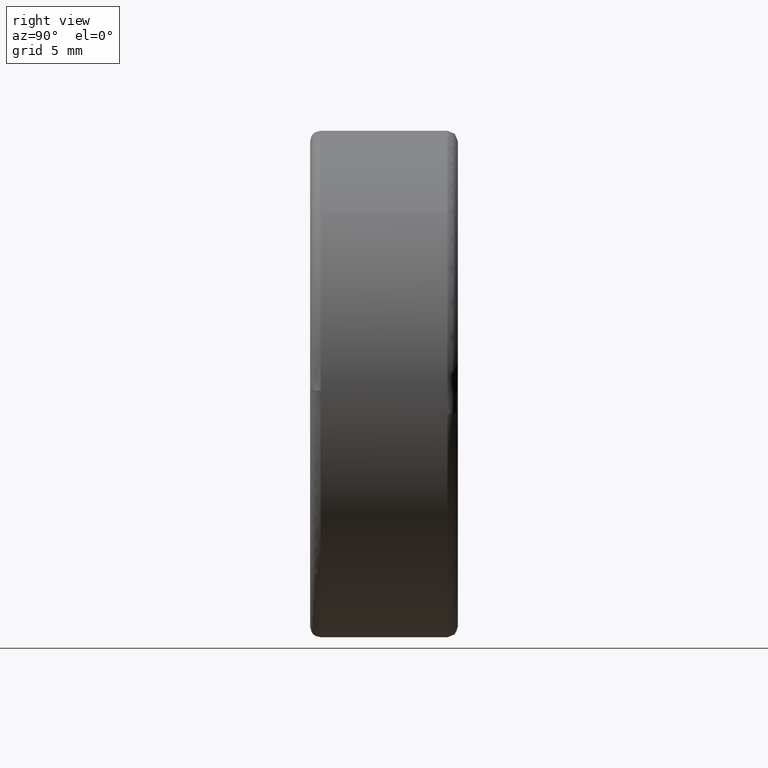
[diagram: clean part render]
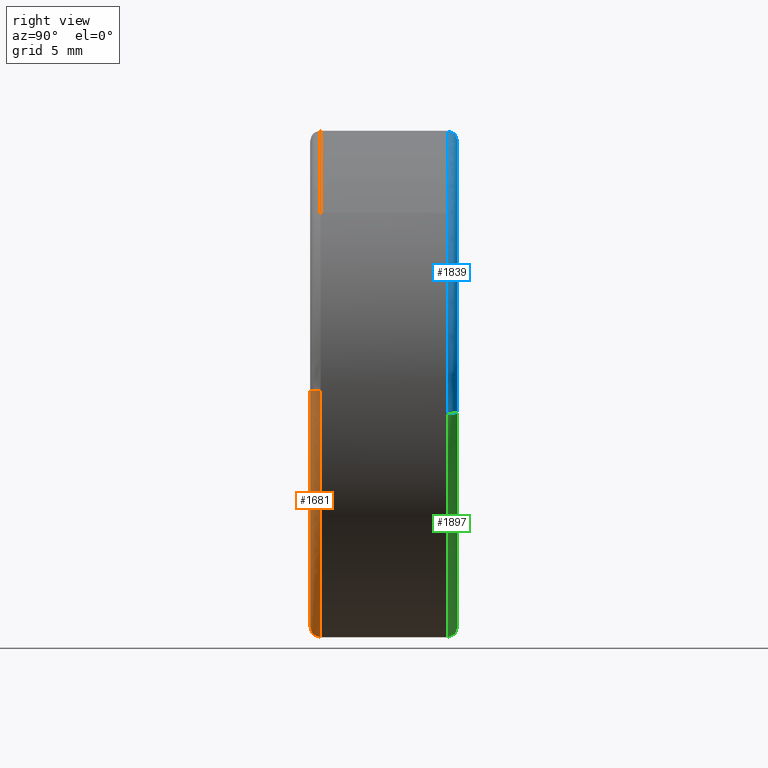
[diagram: same view with three faces highlighted in distinct colors, each labeled with its STEP entity id]
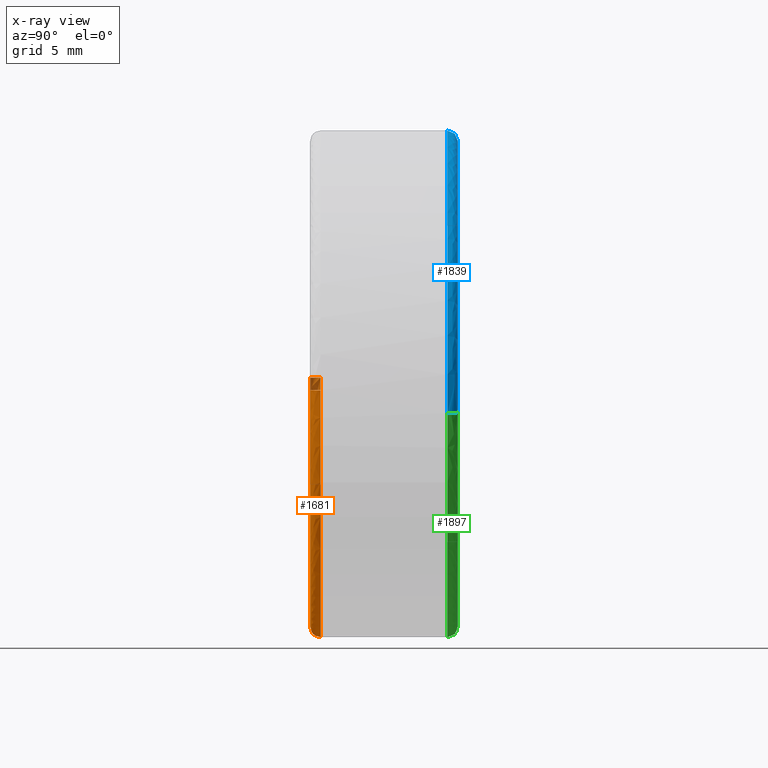
[diagram: x-ray of the same camera — body ghosted, the three highlighted faces saturated]
A machine part, right view with three faces highlighted in distinct colors.
The next image is the same camera in x-ray (body ghosted, the three faces saturated) — at least one of them is partly hidden behind the body in this view.
Their STEP definitions:

[orange] entity #1681 — the highlighted face is a freeform B-spline surface patch.
#1188=CARTESIAN_POINT('',(-11.996210271399590,0.499999999851395,0.301561145320187));
#1189=VERTEX_POINT('',#1188);
#1279=CARTESIAN_POINT('',(11.996210271399590,0.499999999851395,-0.301561145320187));
#1280=VERTEX_POINT('',#1279);
#1296=CARTESIAN_POINT('',(0.0,0.500000000000000,-12.0));
#1297=VERTEX_POINT('',#1296);
#1298=CARTESIAN_POINT('',(0.0,0.500000000000000,-12.0));
#1299=CARTESIAN_POINT('',(11.702134514167529,0.500000000000000,-12.000000000000002));
#1300=CARTESIAN_POINT('',(11.996210271399594,0.499999999851395,-0.301561145320187));
#1308=(BOUNDED_CURVE()B_SPLINE_CURVE(2,(#1298,#1299,#1300),.UNSPECIFIED.,.F.,.U.)B_SPLINE_CURVE_WITH_KNOTS((3,3),(0.0,0.245579891769804),.UNSPECIFIED.)CURVE()GEOMETRIC_REPRESENTATION_ITEM()RATIONAL_B_SPLINE_CURVE((1.0,0.712285260094732,0.989826157681567))REPRESENTATION_ITEM(''));
#1309=EDGE_CURVE('',#1297,#1280,#1308,.T.);
#1311=CARTESIAN_POINT('',(-11.996210271399594,0.499999999851395,0.301561145320187));
#1312=CARTESIAN_POINT('',(-12.000000000000002,0.500000000000000,0.150804385480692));
#1313=CARTESIAN_POINT('',(-12.0,0.500000000000000,-1.642359E-016));
#1314=CARTESIAN_POINT('',(-12.0,0.500000000000000,-12.0));
#1315=CARTESIAN_POINT('',(0.0,0.500000000000000,-12.0));
#1323=(BOUNDED_CURVE()B_SPLINE_CURVE(2,(#1311,#1312,#1313,#1314,#1315),.UNSPECIFIED.,.F.,.U.)B_SPLINE_CURVE_WITH_KNOTS((3,2,3),(0.745579891769804,0.750000000000000,1.0),.UNSPECIFIED.)CURVE()GEOMETRIC_REPRESENTATION_ITEM()RATIONAL_B_SPLINE_CURVE((0.989826157681567,0.994821521091816,1.0,0.707106781186548,1.0))REPRESENTATION_ITEM(''));
#1324=EDGE_CURVE('',#1189,#1297,#1323,.T.);
#1594=CARTESIAN_POINT('',(-11.994993809500418,0.534862092272230,0.301530565859099));
#1595=CARTESIAN_POINT('',(-12.296524375359516,0.534862092272230,-11.693463243641309));
#1596=CARTESIAN_POINT('',(-0.301530565859102,0.534862092272230,-11.994993809500418));
#1597=CARTESIAN_POINT('',(11.693463243641309,0.534862092272230,-12.296524375359516));
#1598=CARTESIAN_POINT('',(11.994993809500418,0.534862092272230,-0.301530565859103));
#1599=CARTESIAN_POINT('',(-12.035067614781358,-0.038667840746360,0.302537942550942));
#1600=CARTESIAN_POINT('',(-12.337605557332299,-0.038667840746360,-11.732529672230411));
#1601=CARTESIAN_POINT('',(-0.302537942550945,-0.038667840746360,-12.035067614781358));
#1602=CARTESIAN_POINT('',(11.732529672230406,-0.038667840746360,-12.337605557332303));
#1603=CARTESIAN_POINT('',(12.035067614781358,-0.038667840746360,-0.302537942550946));
#1604=CARTESIAN_POINT('',(-11.461703840548806,0.001203824725025,0.288124704325632));
#1605=CARTESIAN_POINT('',(-11.749828544874434,0.001203824725025,-11.173579136223164));
#1606=CARTESIAN_POINT('',(-0.288124704325635,0.001203824725025,-11.461703840548806));
#1607=CARTESIAN_POINT('',(11.173579136223164,0.001203824725025,-11.749828544874434));
#1608=CARTESIAN_POINT('',(11.461703840548806,0.001203824725025,-0.288124704325636));
#1616=(BOUNDED_SURFACE()B_SPLINE_SURFACE(2,2,((#1594,#1599,#1604),(#1595,#1600,#1605),(#1596,#1601,#1606),(#1597,#1602,#1607),(#1598,#1603,#1608)),.UNSPECIFIED.,.F.,.F.,.U.)B_SPLINE_SURFACE_WITH_KNOTS((3,2,3),(3,3),(0.0,19.880234857123948,39.760469714247890),(0.0,0.911185162596443),.UNSPECIFIED.)GEOMETRIC_REPRESENTATION_ITEM()RATIONAL_B_SPLINE_SURFACE(((0.910892941386805,0.599412934105556,0.915966621324616),(0.644098575789570,0.423848950436964,0.647686209279166),(0.910892941386805,0.599412934105556,0.915966621324616),(0.644098575789570,0.423848950436964,0.647686209279166),(0.910892941386805,0.599412934105556,0.915966621324616)))REPRESENTATION_ITEM('')SURFACE());
#1617=CARTESIAN_POINT('',(-11.496368177523900,-9.688065E-016,0.288996097631335));
#1618=VERTEX_POINT('',#1617);
#1619=CARTESIAN_POINT('',(0.0,-2.109424E-015,-11.500000000000000));
#1620=VERTEX_POINT('',#1619);
#1621=CARTESIAN_POINT('',(-11.496368177523902,-9.688065E-016,0.288996097631335));
#1622=CARTESIAN_POINT('',(-11.500000000000000,-2.109424E-015,0.144520869432563));
#1623=CARTESIAN_POINT('',(-11.500000000000000,-2.109424E-015,-1.642359E-016));
#1624=CARTESIAN_POINT('',(-11.500000000000000,-2.109424E-015,-11.500000000000000));
#1625=CARTESIAN_POINT('',(0.0,-2.109424E-015,-11.500000000000000));
#1633=(BOUNDED_CURVE()B_SPLINE_CURVE(2,(#1621,#1622,#1623,#1624,#1625),.UNSPECIFIED.,.F.,.U.)B_SPLINE_CURVE_WITH_KNOTS((3,2,3),(0.745579891769391,0.750000000000000,1.0),.UNSPECIFIED.)CURVE()GEOMETRIC_REPRESENTATION_ITEM()RATIONAL_B_SPLINE_CURVE((0.989826157680634,0.994821521091332,1.0,0.707106781186548,1.0))REPRESENTATION_ITEM(''));
#1634=EDGE_CURVE('',#1618,#1620,#1633,.T.);
#1635=ORIENTED_EDGE('',*,*,#1634,.F.);
#1636=CARTESIAN_POINT('',(-11.996210271399599,0.499999999851395,0.301561145320187));
#1637=CARTESIAN_POINT('',(-11.996210271102481,1.533080E-009,0.301561145312582));
#1638=CARTESIAN_POINT('',(-11.496368177523905,-9.688065E-016,0.288996097631335));
#1646=(BOUNDED_CURVE()B_SPLINE_CURVE(2,(#1636,#1637,#1638),.UNSPECIFIED.,.F.,.U.)B_SPLINE_CURVE_WITH_KNOTS((3,3),(-1.723441281372762,-0.263586882101191),.UNSPECIFIED.)CURVE()GEOMETRIC_REPRESENTATION_ITEM()RATIONAL_B_SPLINE_CURVE((0.883897566922966,0.626638727906540,0.888510407924062))REPRESENTATION_ITEM(''));
#1647=EDGE_CURVE('',#1189,#1618,#1646,.T.);
#1648=ORIENTED_EDGE('',*,*,#1647,.F.);
#1649=ORIENTED_EDGE('',*,*,#1324,.T.);
#1650=ORIENTED_EDGE('',*,*,#1309,.T.);
#1651=CARTESIAN_POINT('',(11.496368177523900,-9.609969E-016,-0.288996097631335));
#1652=VERTEX_POINT('',#1651);
#1653=CARTESIAN_POINT('',(11.996210271399599,0.499999999851395,-0.301561145320187));
#1654=CARTESIAN_POINT('',(11.996210271102481,1.533080E-009,-0.301561145312580));
#1655=CARTESIAN_POINT('',(11.496368177523905,-9.609969E-016,-0.288996097631335));
#1663=(BOUNDED_CURVE()B_SPLINE_CURVE(2,(#1653,#1654,#1655),.UNSPECIFIED.,.F.,.U.)B_SPLINE_CURVE_WITH_KNOTS((3,3),(-1.723441281372762,-0.263586882101191),.UNSPECIFIED.)CURVE()GEOMETRIC_REPRESENTATION_ITEM()RATIONAL_B_SPLINE_CURVE((0.883897566922966,0.626638727906540,0.888510407924062))REPRESENTATION_ITEM(''));
#1664=EDGE_CURVE('',#1280,#1652,#1663,.T.);
#1665=ORIENTED_EDGE('',*,*,#1664,.T.);
#1666=CARTESIAN_POINT('',(0.0,-2.109424E-015,-11.500000000000000));
#1667=CARTESIAN_POINT('',(11.214545576050746,-2.109424E-015,-11.500000000000000));
#1668=CARTESIAN_POINT('',(11.496368177523902,-9.609969E-016,-0.288996097631335));
#1676=(BOUNDED_CURVE()B_SPLINE_CURVE(2,(#1666,#1667,#1668),.UNSPECIFIED.,.F.,.U.)B_SPLINE_CURVE_WITH_KNOTS((3,3),(0.0,0.245579891769391),.UNSPECIFIED.)CURVE()GEOMETRIC_REPRESENTATION_ITEM()RATIONAL_B_SPLINE_CURVE((1.0,0.712285260095215,0.989826157680634))REPRESENTATION_ITEM(''));
#1677=EDGE_CURVE('',#1620,#1652,#1676,.T.);
#1678=ORIENTED_EDGE('',*,*,#1677,.F.);
#1679=EDGE_LOOP('',(#1635,#1648,#1649,#1650,#1665,#1678));
#1680=FACE_OUTER_BOUND('',#1679,.T.);
#1681=ADVANCED_FACE('',(#1680),#1616,.T.);

[blue] entity #1839 — the highlighted face is a freeform B-spline surface patch.
#1203=CARTESIAN_POINT('',(-5.810634867246032,6.500000000006367,10.499358191791520));
#1204=VERTEX_POINT('',#1203);
#1210=CARTESIAN_POINT('',(-12.0,6.500000000050907,0.0));
#1211=VERTEX_POINT('',#1210);
#1212=CARTESIAN_POINT('',(-5.810634867246032,6.500000000006366,10.499358191791520));
#1213=CARTESIAN_POINT('',(-11.999999999999963,6.500000000020898,7.073992546621740));
#1214=CARTESIAN_POINT('',(-11.999999999999993,6.500000000050908,0.0));
#1222=(BOUNDED_CURVE()B_SPLINE_CURVE(2,(#1212,#1213,#1214),.UNSPECIFIED.,.F.,.U.)B_SPLINE_CURVE_WITH_KNOTS((3,3),(0.582484260833104,0.749999999999999),.UNSPECIFIED.)CURVE()GEOMETRIC_REPRESENTATION_ITEM()RATIONAL_B_SPLINE_CURVE((0.870495159877570,0.803743103813973,0.999999999999998))REPRESENTATION_ITEM(''));
#1223=EDGE_CURVE('',#1204,#1211,#1222,.T.);
#1240=CARTESIAN_POINT('',(11.919739665420460,6.500000000054701,-1.385570751929333));
#1241=VERTEX_POINT('',#1240);
#1255=CARTESIAN_POINT('',(8.847328477253249,6.500000000000000,8.107082016088356));
#1256=VERTEX_POINT('',#1255);
#1257=CARTESIAN_POINT('',(11.919739665420463,6.500000000054701,-1.385570751929333));
#1258=CARTESIAN_POINT('',(11.999999999999998,6.499999999999999,-0.695109949179016));
#1259=CARTESIAN_POINT('',(12.0,6.500000000000000,-1.642359E-016));
#1260=CARTESIAN_POINT('',(12.000000000000002,6.500000000000000,4.666544040076233));
#1261=CARTESIAN_POINT('',(8.847328477253249,6.500000000000000,8.107082016088357));
#1269=(BOUNDED_CURVE()B_SPLINE_CURVE(2,(#1257,#1258,#1259,#1260,#1261),.UNSPECIFIED.,.F.,.U.)B_SPLINE_CURVE_WITH_KNOTS((3,2,3),(0.229999999999874,0.250000000000000,0.368415192864190),.UNSPECIFIED.)CURVE()GEOMETRIC_REPRESENTATION_ITEM()RATIONAL_B_SPLINE_CURVE((0.956886118190411,0.976568542494776,1.0,0.861267972022366,0.853959782840026))REPRESENTATION_ITEM(''));
#1270=EDGE_CURVE('',#1241,#1256,#1269,.T.);
#1372=CARTESIAN_POINT('',(0.0,6.500000000000000,12.0));
#1373=VERTEX_POINT('',#1372);
#1374=CARTESIAN_POINT('',(8.847328477253249,6.500000000000000,8.107082016088356));
#1375=CARTESIAN_POINT('',(5.280127140184427,6.500000000000001,12.000000000000002));
#1376=CARTESIAN_POINT('',(0.0,6.500000000000000,12.0));
#1384=(BOUNDED_CURVE()B_SPLINE_CURVE(2,(#1374,#1375,#1376),.UNSPECIFIED.,.F.,.U.)B_SPLINE_CURVE_WITH_KNOTS((3,3),(0.368415192864190,0.500000000000000),.UNSPECIFIED.)CURVE()GEOMETRIC_REPRESENTATION_ITEM()RATIONAL_B_SPLINE_CURVE((0.853959782840026,0.845838809164181,1.0))REPRESENTATION_ITEM(''));
#1385=EDGE_CURVE('',#1256,#1373,#1384,.T.);
#1387=CARTESIAN_POINT('',(0.0,6.500000000000000,12.0));
#1388=CARTESIAN_POINT('',(-3.099093663586892,6.500000000000000,12.000000000000002));
#1389=CARTESIAN_POINT('',(-5.810634867246032,6.500000000006366,10.499358191791520));
#1397=(BOUNDED_CURVE()B_SPLINE_CURVE(2,(#1387,#1388,#1389),.UNSPECIFIED.,.F.,.U.)B_SPLINE_CURVE_WITH_KNOTS((3,3),(0.500000000000000,0.582484260833104),.UNSPECIFIED.)CURVE()GEOMETRIC_REPRESENTATION_ITEM()RATIONAL_B_SPLINE_CURVE((1.0,0.903363677372575,0.870495159877570))REPRESENTATION_ITEM(''));
#1398=EDGE_CURVE('',#1373,#1204,#1397,.T.);
#1744=CARTESIAN_POINT('',(11.388640628417720,6.998796175226596,-1.323833597733867));
#1745=CARTESIAN_POINT('',(11.465324712267670,6.998796175226593,-0.664137791265817));
#1746=CARTESIAN_POINT('',(11.465324712267673,6.998796175226595,-2.106076E-015));
#1747=CARTESIAN_POINT('',(11.465324712267670,6.998796175226596,11.465324712267666));
#1748=CARTESIAN_POINT('',(2.808102E-015,6.998796175226595,11.465324712267673));
#1749=CARTESIAN_POINT('',(-11.465324712267662,6.998796175226596,11.465324712267670));
#1750=CARTESIAN_POINT('',(-11.465324712267673,6.998796175226595,3.510127E-015));
#1751=CARTESIAN_POINT('',(11.958349483954628,7.038667842741715,-1.390057456093603));
#1752=CARTESIAN_POINT('',(12.038869635959983,7.038667842741712,-0.697360824051375));
#1753=CARTESIAN_POINT('',(12.038869635959982,7.038667842741712,-2.211431E-015));
#1754=CARTESIAN_POINT('',(12.038869635959982,7.038667842741712,12.038869635959976));
#1755=CARTESIAN_POINT('',(2.948575E-015,7.038667842741712,12.038869635959982));
#1756=CARTESIAN_POINT('',(-12.038869635959976,7.038667842741712,12.038869635959983));
#1757=CARTESIAN_POINT('',(-12.038869635959982,7.038667842741712,3.685719E-015));
#1758=CARTESIAN_POINT('',(11.918531113131714,6.465137893018172,-1.385428905696564));
#1759=CARTESIAN_POINT('',(11.998783152779627,6.465137893018171,-0.695038783545141));
#1760=CARTESIAN_POINT('',(11.998783152779630,6.465137893018171,-2.204068E-015));
#1761=CARTESIAN_POINT('',(11.998783152779625,6.465137893018171,11.998783152779621));
#1762=CARTESIAN_POINT('',(2.938757E-015,6.465137893018171,11.998783152779630));
#1763=CARTESIAN_POINT('',(-11.998783152779621,6.465137893018171,11.998783152779628));
#1764=CARTESIAN_POINT('',(-11.998783152779630,6.465137893018171,3.673447E-015));
#1772=(BOUNDED_SURFACE()B_SPLINE_SURFACE(2,2,((#1744,#1751,#1758),(#1745,#1752,#1759),(#1746,#1753,#1760),(#1747,#1754,#1761),(#1748,#1755,#1762),(#1749,#1756,#1763),(#1750,#1757,#1764)),.UNSPECIFIED.,.F.,.F.,.U.)B_SPLINE_SURFACE_WITH_KNOTS((3,2,2,3),(3,3),(0.0,1.590417271692089,21.470652127112590,41.350886982533083),(0.0,0.911185181254625),.UNSPECIFIED.)GEOMETRIC_REPRESENTATION_ITEM()RATIONAL_B_SPLINE_SURFACE(((0.876475779619699,0.573569932033053,0.871620856583481),(0.894504209402347,0.585367822500240,0.889549424349295),(0.915966621911565,0.599412927647948,0.910892953526734),(0.647686209694202,0.423848945870745,0.644098584373797),(0.915966621911565,0.599412927647948,0.910892953526734),(0.647686209694202,0.423848945870745,0.644098584373797),(0.915966621911565,0.599412927647948,0.910892953526734)))REPRESENTATION_ITEM('')SURFACE());
#1773=ORIENTED_EDGE('',*,*,#1385,.F.);
#1774=ORIENTED_EDGE('',*,*,#1270,.F.);
#1775=CARTESIAN_POINT('',(11.423083846275119,7.0,-1.327838637292638));
#1776=VERTEX_POINT('',#1775);
#1777=CARTESIAN_POINT('',(11.423083846275116,7.0,-1.327838637292637));
#1778=CARTESIAN_POINT('',(11.919739665312308,6.999999999502720,-1.385570751912256));
#1779=CARTESIAN_POINT('',(11.919739665420465,6.500000000054700,-1.385570751929333));
#1787=(BOUNDED_CURVE()B_SPLINE_CURVE(2,(#1777,#1778,#1779),.UNSPECIFIED.,.F.,.U.)B_SPLINE_CURVE_WITH_KNOTS((3,3),(-1.736413120042838,-0.276558718240506),.UNSPECIFIED.)CURVE()GEOMETRIC_REPRESENTATION_ITEM()RATIONAL_B_SPLINE_CURVE((0.850203275946493,0.599621899426504,0.845789311821511))REPRESENTATION_ITEM(''));
#1788=EDGE_CURVE('',#1776,#1241,#1787,.T.);
#1789=ORIENTED_EDGE('',*,*,#1788,.F.);
#1790=CARTESIAN_POINT('',(0.0,7.0,11.500000000000000));
#1791=VERTEX_POINT('',#1790);
#1792=CARTESIAN_POINT('',(11.423083846275116,7.0,-1.327838637292638));
#1793=CARTESIAN_POINT('',(11.499999999999995,7.0,-0.666147034628190));
#1794=CARTESIAN_POINT('',(11.500000000000000,7.0,-1.642359E-016));
#1795=CARTESIAN_POINT('',(11.500000000000000,6.999999999999999,11.500000000000000));
#1796=CARTESIAN_POINT('',(0.0,7.0,11.500000000000000));
#1804=(BOUNDED_CURVE()B_SPLINE_CURVE(2,(#1792,#1793,#1794,#1795,#1796),.UNSPECIFIED.,.F.,.U.)B_SPLINE_CURVE_WITH_KNOTS((3,2,3),(0.229999999999924,0.250000000000000,0.500000000000000),.UNSPECIFIED.)CURVE()GEOMETRIC_REPRESENTATION_ITEM()RATIONAL_B_SPLINE_CURVE((0.956886118190510,0.976568542494834,1.0,0.707106781186548,1.0))REPRESENTATION_ITEM(''));
#1805=EDGE_CURVE('',#1776,#1791,#1804,.T.);
#1806=ORIENTED_EDGE('',*,*,#1805,.T.);
#1807=CARTESIAN_POINT('',(-11.500000000088900,7.0,0.0));
#1808=VERTEX_POINT('',#1807);
#1809=CARTESIAN_POINT('',(0.0,7.0,11.500000000000000));
#1810=CARTESIAN_POINT('',(-11.499999999999943,7.0,11.500000000000000));
#1811=CARTESIAN_POINT('',(-11.500000000088903,7.0,0.0));
#1819=(BOUNDED_CURVE()B_SPLINE_CURVE(2,(#1809,#1810,#1811),.UNSPECIFIED.,.F.,.U.)B_SPLINE_CURVE_WITH_KNOTS((3,3),(0.500000000000000,0.749999999999999),.UNSPECIFIED.)CURVE()GEOMETRIC_REPRESENTATION_ITEM()RATIONAL_B_SPLINE_CURVE((1.0,0.707106781186549,0.999999999999998))REPRESENTATION_ITEM(''));
#1820=EDGE_CURVE('',#1791,#1808,#1819,.T.);
#1821=ORIENTED_EDGE('',*,*,#1820,.T.);
#1822=CARTESIAN_POINT('',(-11.500000000088896,7.0,0.0));
#1823=CARTESIAN_POINT('',(-11.999999999898181,6.999999999822197,0.0));
#1824=CARTESIAN_POINT('',(-11.999999999999996,6.500000000050907,0.0));
#1832=(BOUNDED_CURVE()B_SPLINE_CURVE(2,(#1822,#1823,#1824),.UNSPECIFIED.,.F.,.U.)B_SPLINE_CURVE_WITH_KNOTS((3,3),(-1.736413120704134,-0.276558718224886),.UNSPECIFIED.)CURVE()GEOMETRIC_REPRESENTATION_ITEM()RATIONAL_B_SPLINE_CURVE((0.888510408930512,0.626638727340004,0.883897567064773))REPRESENTATION_ITEM(''));
#1833=EDGE_CURVE('',#1808,#1211,#1832,.T.);
#1834=ORIENTED_EDGE('',*,*,#1833,.T.);
#1835=ORIENTED_EDGE('',*,*,#1223,.F.);
#1836=ORIENTED_EDGE('',*,*,#1398,.F.);
#1837=EDGE_LOOP('',(#1773,#1774,#1789,#1806,#1821,#1834,#1835,#1836));
#1838=FACE_OUTER_BOUND('',#1837,.T.);
#1839=ADVANCED_FACE('',(#1838),#1772,.T.);

[green] entity #1897 — the highlighted face is a freeform B-spline surface patch.
#1210=CARTESIAN_POINT('',(-12.0,6.500000000050907,0.0));
#1211=VERTEX_POINT('',#1210);
#1225=CARTESIAN_POINT('',(0.0,6.500000000000000,-12.0));
#1226=VERTEX_POINT('',#1225);
#1227=CARTESIAN_POINT('',(-12.0,6.500000000050907,0.0));
#1228=CARTESIAN_POINT('',(-12.0,6.500000000000001,-12.0));
#1229=CARTESIAN_POINT('',(0.0,6.500000000000000,-12.0));
#1237=(BOUNDED_CURVE()B_SPLINE_CURVE(2,(#1227,#1228,#1229),.UNSPECIFIED.,.F.,.U.)B_SPLINE_CURVE_WITH_KNOTS((3,3),(0.750000000000000,1.0),.UNSPECIFIED.)CURVE()GEOMETRIC_REPRESENTATION_ITEM()RATIONAL_B_SPLINE_CURVE((1.0,0.707106781186548,1.0))REPRESENTATION_ITEM(''));
#1238=EDGE_CURVE('',#1211,#1226,#1237,.T.);
#1240=CARTESIAN_POINT('',(11.919739665420460,6.500000000054701,-1.385570751929333));
#1241=VERTEX_POINT('',#1240);
#1242=CARTESIAN_POINT('',(0.0,6.500000000000000,-12.0));
#1243=CARTESIAN_POINT('',(10.685900409915295,6.499999999999999,-12.0));
#1244=CARTESIAN_POINT('',(11.919739665420463,6.500000000054701,-1.385570751929333));
#1252=(BOUNDED_CURVE()B_SPLINE_CURVE(2,(#1242,#1243,#1244),.UNSPECIFIED.,.F.,.U.)B_SPLINE_CURVE_WITH_KNOTS((3,3),(0.0,0.229999999999874),.UNSPECIFIED.)CURVE()GEOMETRIC_REPRESENTATION_ITEM()RATIONAL_B_SPLINE_CURVE((1.0,0.730538238691772,0.956886118190411))REPRESENTATION_ITEM(''));
#1253=EDGE_CURVE('',#1226,#1241,#1252,.T.);
#1775=CARTESIAN_POINT('',(11.423083846275119,7.0,-1.327838637292638));
#1776=VERTEX_POINT('',#1775);
#1777=CARTESIAN_POINT('',(11.423083846275116,7.0,-1.327838637292637));
#1778=CARTESIAN_POINT('',(11.919739665312308,6.999999999502720,-1.385570751912256));
#1779=CARTESIAN_POINT('',(11.919739665420465,6.500000000054700,-1.385570751929333));
#1787=(BOUNDED_CURVE()B_SPLINE_CURVE(2,(#1777,#1778,#1779),.UNSPECIFIED.,.F.,.U.)B_SPLINE_CURVE_WITH_KNOTS((3,3),(-1.736413120042838,-0.276558718240506),.UNSPECIFIED.)CURVE()GEOMETRIC_REPRESENTATION_ITEM()RATIONAL_B_SPLINE_CURVE((0.850203275946493,0.599621899426504,0.845789311821511))REPRESENTATION_ITEM(''));
#1788=EDGE_CURVE('',#1776,#1241,#1787,.T.);
#1807=CARTESIAN_POINT('',(-11.500000000088900,7.0,0.0));
#1808=VERTEX_POINT('',#1807);
#1822=CARTESIAN_POINT('',(-11.500000000088896,7.0,0.0));
#1823=CARTESIAN_POINT('',(-11.999999999898181,6.999999999822197,0.0));
#1824=CARTESIAN_POINT('',(-11.999999999999996,6.500000000050907,0.0));
#1832=(BOUNDED_CURVE()B_SPLINE_CURVE(2,(#1822,#1823,#1824),.UNSPECIFIED.,.F.,.U.)B_SPLINE_CURVE_WITH_KNOTS((3,3),(-1.736413120704134,-0.276558718224886),.UNSPECIFIED.)CURVE()GEOMETRIC_REPRESENTATION_ITEM()RATIONAL_B_SPLINE_CURVE((0.888510408930512,0.626638727340004,0.883897567064773))REPRESENTATION_ITEM(''));
#1833=EDGE_CURVE('',#1808,#1211,#1832,.T.);
#1840=CARTESIAN_POINT('',(-11.465324712267673,6.998796175226595,7.020255E-016));
#1841=CARTESIAN_POINT('',(-11.465324712267668,6.998796175226596,-11.465324712267666));
#1842=CARTESIAN_POINT('',(-1.404051E-015,6.998796175226595,-11.465324712267673));
#1843=CARTESIAN_POINT('',(10.209776503560418,6.998796175226594,-11.465324712267666));
#1844=CARTESIAN_POINT('',(11.388640479145694,6.998796175226594,-1.323834881886644));
#1845=CARTESIAN_POINT('',(-12.038869635959982,7.038667842741712,7.371438E-016));
#1846=CARTESIAN_POINT('',(-12.038869635959982,7.038667842741712,-12.038869635959976));
#1847=CARTESIAN_POINT('',(-1.474288E-015,7.038667842741712,-12.038869635959982));
#1848=CARTESIAN_POINT('',(10.720513498159848,7.038667842741712,-12.038869635959985));
#1849=CARTESIAN_POINT('',(11.958349327215370,7.038667842741712,-1.390058804485232));
#1850=CARTESIAN_POINT('',(-11.998783152779630,6.465137893018171,7.346893E-016));
#1851=CARTESIAN_POINT('',(-11.998783152779625,6.465137893018171,-11.998783152779621));
#1852=CARTESIAN_POINT('',(-1.469379E-015,6.465137893018171,-11.998783152779630));
#1853=CARTESIAN_POINT('',(10.684816817572401,6.465137893018168,-11.998783152779623));
#1854=CARTESIAN_POINT('',(11.918530956914358,6.465137893018172,-1.385430249598380));
#1862=(BOUNDED_SURFACE()B_SPLINE_SURFACE(2,2,((#1840,#1845,#1850),(#1841,#1846,#1851),(#1842,#1847,#1852),(#1843,#1848,#1853),(#1844,#1849,#1854)),.UNSPECIFIED.,.F.,.F.,.U.)B_SPLINE_SURFACE_WITH_KNOTS((3,2,3),(3,3),(0.0,19.880234855420500,38.170050922407363),(0.0,0.911185181254623),.UNSPECIFIED.)GEOMETRIC_REPRESENTATION_ITEM()RATIONAL_B_SPLINE_SURFACE(((0.915966621911565,0.599412927647948,0.910892953526734),(0.647686209694202,0.423848945870745,0.644098584373797),(0.915966621911565,0.599412927647948,0.910892953526734),(0.669148642671591,0.437894064412921,0.665442133906032),(0.876475745233169,0.573569909530343,0.871620822387422)))REPRESENTATION_ITEM('')SURFACE());
#1863=ORIENTED_EDGE('',*,*,#1253,.F.);
#1864=ORIENTED_EDGE('',*,*,#1238,.F.);
#1865=ORIENTED_EDGE('',*,*,#1833,.F.);
#1866=CARTESIAN_POINT('',(0.0,7.0,-11.500000000000000));
#1867=VERTEX_POINT('',#1866);
#1868=CARTESIAN_POINT('',(-11.500000000088900,7.0,0.0));
#1869=CARTESIAN_POINT('',(-11.500000000000000,6.999999999999999,-11.500000000000000));
#1870=CARTESIAN_POINT('',(0.0,7.0,-11.500000000000000));
#1878=(BOUNDED_CURVE()B_SPLINE_CURVE(2,(#1868,#1869,#1870),.UNSPECIFIED.,.F.,.U.)B_SPLINE_CURVE_WITH_KNOTS((3,3),(0.750000000000000,1.0),.UNSPECIFIED.)CURVE()GEOMETRIC_REPRESENTATION_ITEM()RATIONAL_B_SPLINE_CURVE((1.0,0.707106781186548,1.0))REPRESENTATION_ITEM(''));
#1879=EDGE_CURVE('',#1808,#1867,#1878,.T.);
#1880=ORIENTED_EDGE('',*,*,#1879,.T.);
#1881=CARTESIAN_POINT('',(0.0,7.0,-11.500000000000000));
#1882=CARTESIAN_POINT('',(10.240654559505197,6.999999999999999,-11.499999999999998));
#1883=CARTESIAN_POINT('',(11.423083846275116,7.0,-1.327838637292638));
#1891=(BOUNDED_CURVE()B_SPLINE_CURVE(2,(#1881,#1882,#1883),.UNSPECIFIED.,.F.,.U.)B_SPLINE_CURVE_WITH_KNOTS((3,3),(0.0,0.229999999999924),.UNSPECIFIED.)CURVE()GEOMETRIC_REPRESENTATION_ITEM()RATIONAL_B_SPLINE_CURVE((1.0,0.730538238691713,0.956886118190510))REPRESENTATION_ITEM(''));
#1892=EDGE_CURVE('',#1867,#1776,#1891,.T.);
#1893=ORIENTED_EDGE('',*,*,#1892,.T.);
#1894=ORIENTED_EDGE('',*,*,#1788,.T.);
#1895=EDGE_LOOP('',(#1863,#1864,#1865,#1880,#1893,#1894));
#1896=FACE_OUTER_BOUND('',#1895,.T.);
#1897=ADVANCED_FACE('',(#1896),#1862,.T.);